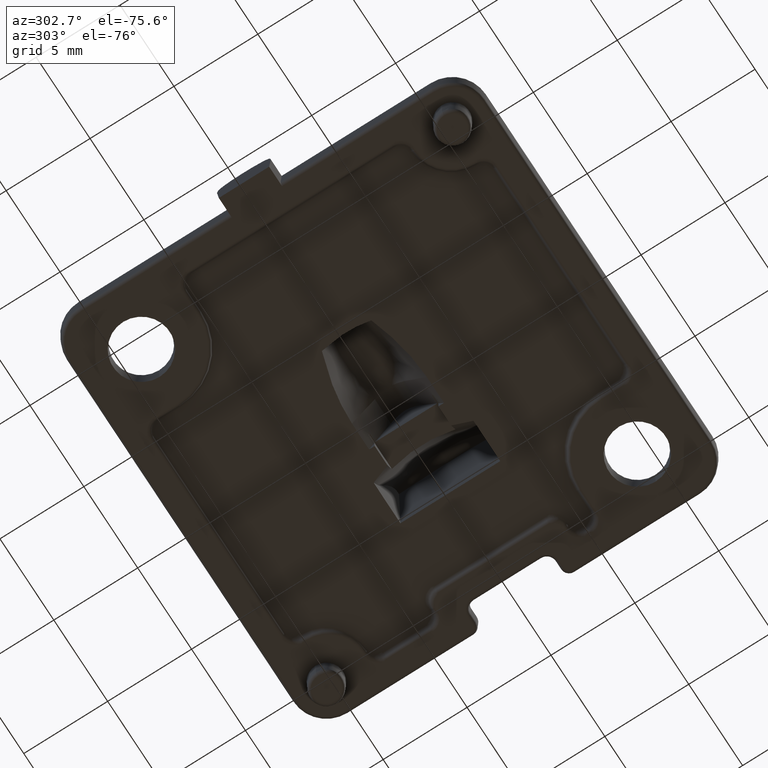
[diagram: clean part render]
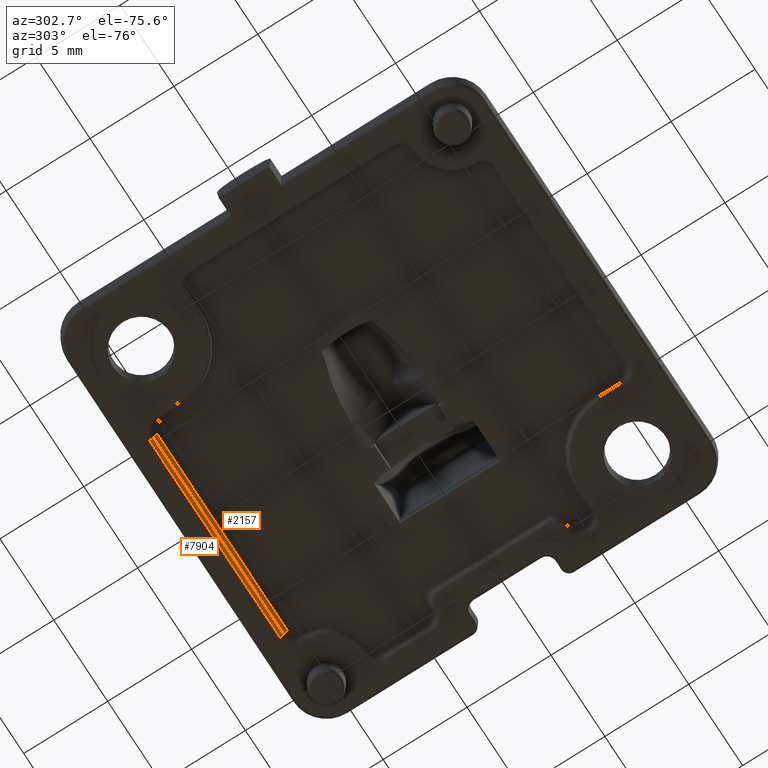
[diagram: same view with one multi-face feature highlighted, each face labeled with its STEP entity id]
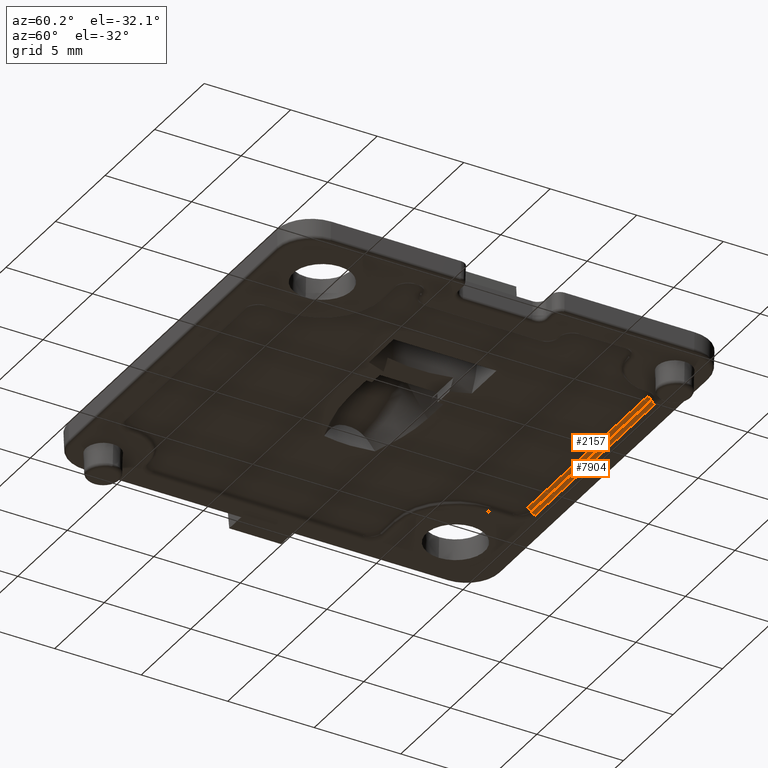
[diagram: same view with one multi-face feature highlighted, each face labeled with its STEP entity id]
A machine part, auxiliary view. The highlighted faces form ONE feature: a constant-radius fillet chain: 2 tangent blend faces with common blend radius 0.25 mm. The faces share edges in the B-rep.
A second angle (auxiliary view) of the same feature is appended — it is thin or edge-on in the first view.
Their STEP definitions:
[1] entity #7904 (Cylinder):
#757 = VERTEX_POINT ( 'NONE', #3069 ) ;
#981 = LINE ( 'NONE', #7360, #7183 ) ;
#1028 = EDGE_CURVE ( 'NONE', #757, #4399, #3843, .T. ) ;
#1145 = DIRECTION ( 'NONE',  ( 1.000000000000000000, -1.284980352575412900E-016, 0.0000000000000000000 ) ) ;
#1182 = DIRECTION ( 'NONE',  ( -1.000000000000000000, 0.0000000000000000000, -0.0000000000000000000 ) ) ;
#1249 = DIRECTION ( 'NONE',  ( -1.000000000000000000, 3.785476970705042700E-015, 0.0000000000000000000 ) ) ;
#1359 = CIRCLE ( 'NONE', #4725, 0.2500000000000000000 ) ;
#1794 = DIRECTION ( 'NONE',  ( -1.000000000000000000, 1.284980352575412900E-016, -0.0000000000000000000 ) ) ;
#1795 = ORIENTED_EDGE ( 'NONE', *, *, #6073, .F. ) ;
#1812 = CARTESIAN_POINT ( 'NONE',  ( 7.298375703292117900, 10.97723036019849700, 0.6500000000000001300 ) ) ;
#1827 = EDGE_LOOP ( 'NONE', ( #3105, #5346, #1795, #5542 ) ) ;
#2581 = VECTOR ( 'NONE', #3266, 1000.000000000000000 ) ;
#3054 = CIRCLE ( 'NONE', #6425, 0.2500000000000002200 ) ;
#3069 = CARTESIAN_POINT ( 'NONE',  ( -4.798375703292112600, 10.97723036019849900, 0.6500000000000001300 ) ) ;
#3105 = ORIENTED_EDGE ( 'NONE', *, *, #6936, .T. ) ;
#3266 = DIRECTION ( 'NONE',  ( 1.000000000000000000, -1.284980352575412900E-016, 0.0000000000000000000 ) ) ;
#3843 = LINE ( 'NONE', #5752, #2581 ) ;
#4399 = VERTEX_POINT ( 'NONE', #1812 ) ;
#4561 = VERTEX_POINT ( 'NONE', #6403 ) ;
#4725 = AXIS2_PLACEMENT_3D ( 'NONE', #4912, #1182, #5546 ) ;
#4869 = DIRECTION ( 'NONE',  ( 0.0000000000000000000, 1.000000000000000000, 0.0000000000000000000 ) ) ;
#4912 = CARTESIAN_POINT ( 'NONE',  ( -4.798375703292112600, 11.20635914494629200, 0.7500000000000000000 ) ) ;
#4979 = CARTESIAN_POINT ( 'NONE',  ( 7.298375703292118800, 11.20635914494629000, 0.7500000000000000000 ) ) ;
#5001 = EDGE_CURVE ( 'NONE', #4561, #7570, #981, .T. ) ;
#5346 = ORIENTED_EDGE ( 'NONE', *, *, #1028, .F. ) ;
#5542 = ORIENTED_EDGE ( 'NONE', *, *, #5001, .F. ) ;
#5546 = DIRECTION ( 'NONE',  ( 0.0000000000000000000, 0.0000000000000000000, 1.000000000000000000 ) ) ;
#5611 = DIRECTION ( 'NONE',  ( -3.469446951953611000E-015, -1.000000000000000000, 0.0000000000000000000 ) ) ;
#5752 = CARTESIAN_POINT ( 'NONE',  ( -9.000000000000001800, 10.97723036019849900, 0.6500000000000000200 ) ) ;
#6073 = EDGE_CURVE ( 'NONE', #7570, #757, #1359, .T. ) ;
#6082 = CARTESIAN_POINT ( 'NONE',  ( -9.000000000000001800, 11.20635914494629200, 0.7500000000000000000 ) ) ;
#6152 = FACE_OUTER_BOUND ( 'NONE', #1827, .T. ) ;
#6403 = CARTESIAN_POINT ( 'NONE',  ( 7.298375703292118800, 11.20635914494629000, 0.5000000000000000000 ) ) ;
#6425 = AXIS2_PLACEMENT_3D ( 'NONE', #4979, #1249, #5611 ) ;
#6921 = CARTESIAN_POINT ( 'NONE',  ( -4.798375703292112600, 11.20635914494629200, 0.5000000000000000000 ) ) ;
#6936 = EDGE_CURVE ( 'NONE', #4561, #4399, #3054, .T. ) ;
#7183 = VECTOR ( 'NONE', #1794, 1000.000000000000000 ) ;
#7360 = CARTESIAN_POINT ( 'NONE',  ( 10.50000000000000200, 11.20635914494628900, 0.5000000000000000000 ) ) ;
#7400 = CYLINDRICAL_SURFACE ( 'NONE', #7641, 0.2500000000000002200 ) ;
#7570 = VERTEX_POINT ( 'NONE', #6921 ) ;
#7641 = AXIS2_PLACEMENT_3D ( 'NONE', #6082, #1145, #4869 ) ;
#7904 = ADVANCED_FACE ( 'NONE', ( #6152 ), #7400, .T. ) ;
[2] entity #2157 (Cylinder):
#381 = DIRECTION ( 'NONE',  ( 0.0000000000000000000, 0.0000000000000000000, -1.000000000000000000 ) ) ;
#510 = VECTOR ( 'NONE', #4030, 1000.000000000000000 ) ;
#757 = VERTEX_POINT ( 'NONE', #3069 ) ;
#796 = CIRCLE ( 'NONE', #7941, 0.2500000000000000000 ) ;
#1028 = EDGE_CURVE ( 'NONE', #757, #4399, #3843, .T. ) ;
#1095 = EDGE_CURVE ( 'NONE', #7638, #2401, #5505, .T. ) ;
#1812 = CARTESIAN_POINT ( 'NONE',  ( 7.298375703292117900, 10.97723036019849700, 0.6500000000000001300 ) ) ;
#2157 = ADVANCED_FACE ( 'NONE', ( #5593 ), #3362, .F. ) ;
#2401 = VERTEX_POINT ( 'NONE', #3732 ) ;
#2448 = CARTESIAN_POINT ( 'NONE',  ( -9.000000000000001800, 10.74810157545070800, 0.5499999999999999300 ) ) ;
#2502 = ORIENTED_EDGE ( 'NONE', *, *, #2868, .T. ) ;
#2581 = VECTOR ( 'NONE', #3266, 1000.000000000000000 ) ;
#2725 = ORIENTED_EDGE ( 'NONE', *, *, #1095, .F. ) ;
#2837 = DIRECTION ( 'NONE',  ( 1.000000000000000000, 0.0000000000000000000, 0.0000000000000000000 ) ) ;
#2868 = EDGE_CURVE ( 'NONE', #4399, #2401, #796, .T. ) ;
#3069 = CARTESIAN_POINT ( 'NONE',  ( -4.798375703292112600, 10.97723036019849900, 0.6500000000000001300 ) ) ;
#3110 = DIRECTION ( 'NONE',  ( 1.000000000000000000, -1.284980352575412900E-016, 0.0000000000000000000 ) ) ;
#3266 = DIRECTION ( 'NONE',  ( 1.000000000000000000, -1.284980352575412900E-016, 0.0000000000000000000 ) ) ;
#3321 = CARTESIAN_POINT ( 'NONE',  ( -4.798375703292112600, 10.74810157545070800, 0.7999999999999999300 ) ) ;
#3362 = CYLINDRICAL_SURFACE ( 'NONE', #7412, 0.2500000000000002200 ) ;
#3732 = CARTESIAN_POINT ( 'NONE',  ( 7.298375703292117900, 10.74810157545070600, 0.7999999999999999300 ) ) ;
#3771 = DIRECTION ( 'NONE',  ( 0.0000000000000000000, 1.000000000000000000, 0.0000000000000000000 ) ) ;
#3843 = LINE ( 'NONE', #5752, #2581 ) ;
#4030 = DIRECTION ( 'NONE',  ( 1.000000000000000000, -1.284980352575412900E-016, 0.0000000000000000000 ) ) ;
#4134 = ORIENTED_EDGE ( 'NONE', *, *, #1028, .T. ) ;
#4174 = DIRECTION ( 'NONE',  ( 1.000000000000000000, 0.0000000000000000000, 0.0000000000000000000 ) ) ;
#4399 = VERTEX_POINT ( 'NONE', #1812 ) ;
#5500 = CIRCLE ( 'NONE', #7829, 0.2500000000000000000 ) ;
#5505 = LINE ( 'NONE', #5833, #510 ) ;
#5593 = FACE_OUTER_BOUND ( 'NONE', #7247, .T. ) ;
#5752 = CARTESIAN_POINT ( 'NONE',  ( -9.000000000000001800, 10.97723036019849900, 0.6500000000000000200 ) ) ;
#5833 = CARTESIAN_POINT ( 'NONE',  ( -9.000000000000001800, 10.74810157545070800, 0.7999999999999999300 ) ) ;
#6542 = CARTESIAN_POINT ( 'NONE',  ( 7.298375703292117900, 10.74810157545070600, 0.5499999999999999300 ) ) ;
#6727 = EDGE_CURVE ( 'NONE', #757, #7638, #5500, .T. ) ;
#7071 = ORIENTED_EDGE ( 'NONE', *, *, #6727, .F. ) ;
#7171 = DIRECTION ( 'NONE',  ( 0.0000000000000000000, 0.0000000000000000000, -1.000000000000000000 ) ) ;
#7247 = EDGE_LOOP ( 'NONE', ( #7071, #4134, #2502, #2725 ) ) ;
#7412 = AXIS2_PLACEMENT_3D ( 'NONE', #2448, #3110, #3771 ) ;
#7638 = VERTEX_POINT ( 'NONE', #3321 ) ;
#7829 = AXIS2_PLACEMENT_3D ( 'NONE', #7845, #4174, #381 ) ;
#7845 = CARTESIAN_POINT ( 'NONE',  ( -4.798375703292112600, 10.74810157545070800, 0.5499999999999999300 ) ) ;
#7941 = AXIS2_PLACEMENT_3D ( 'NONE', #6542, #2837, #7171 ) ;